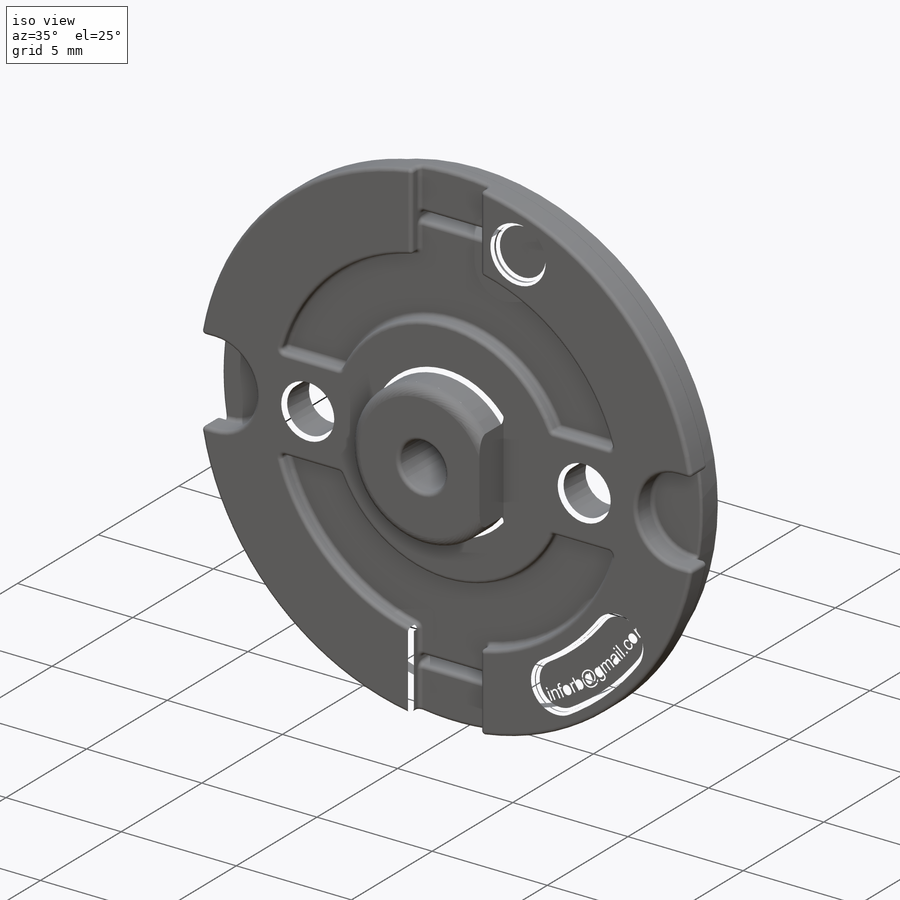
[diagram: iso view]
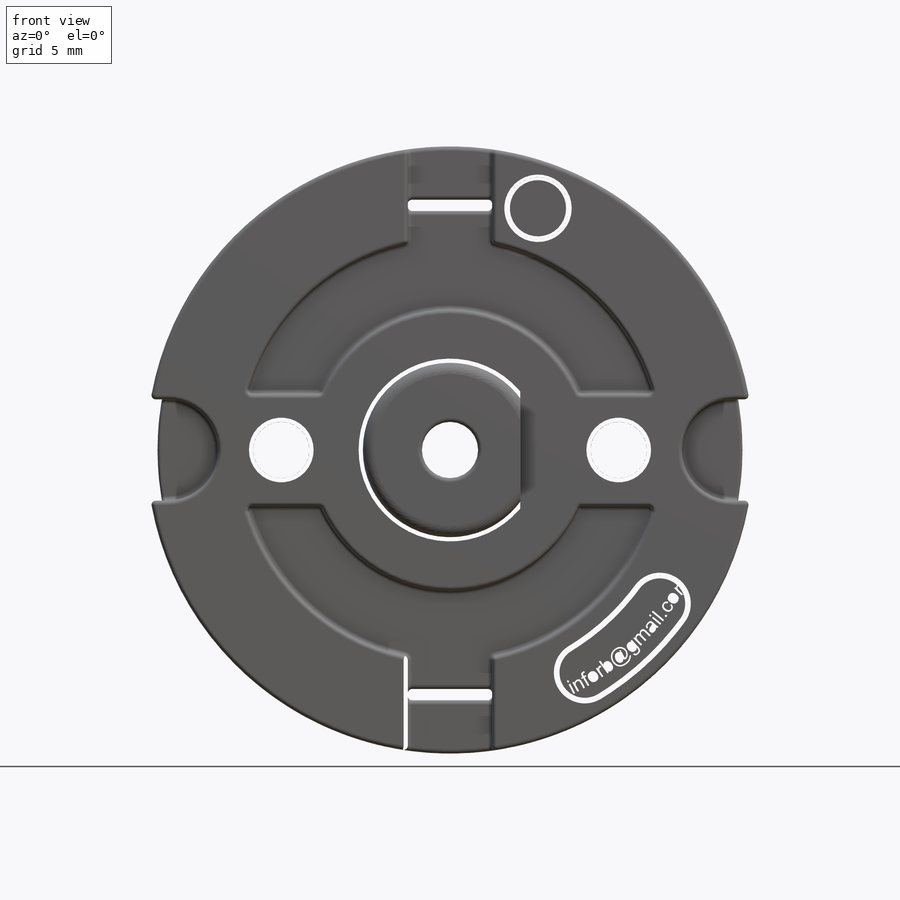
[diagram: front view]
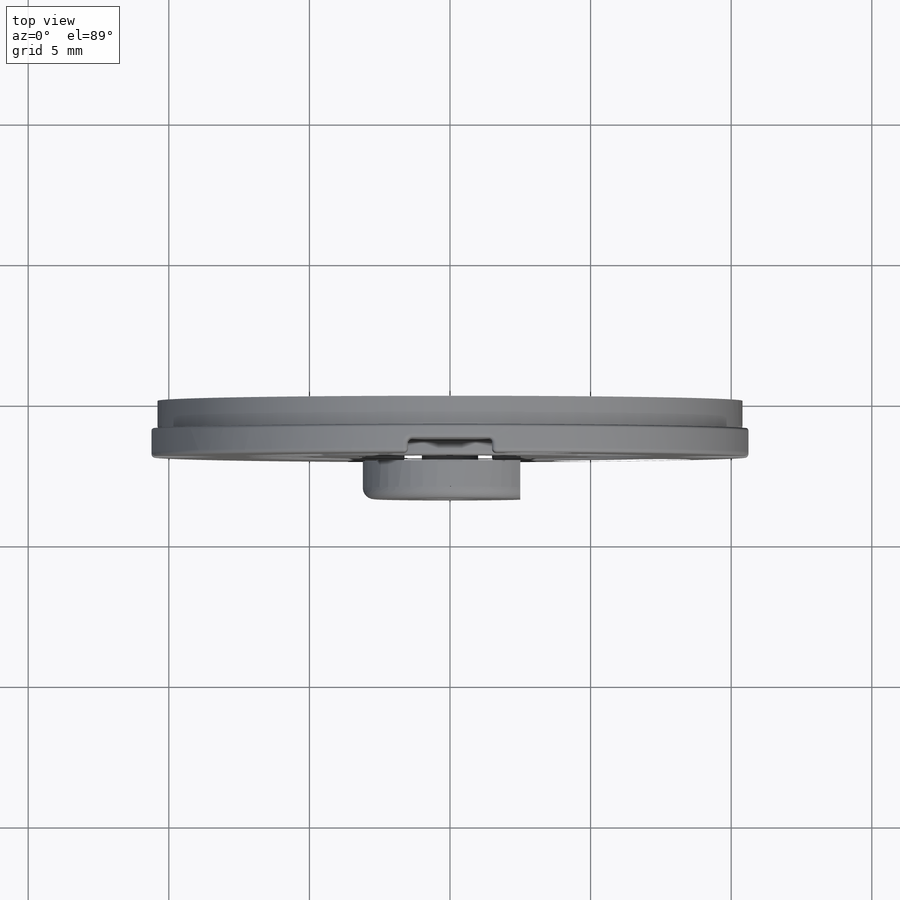
[diagram: top view]
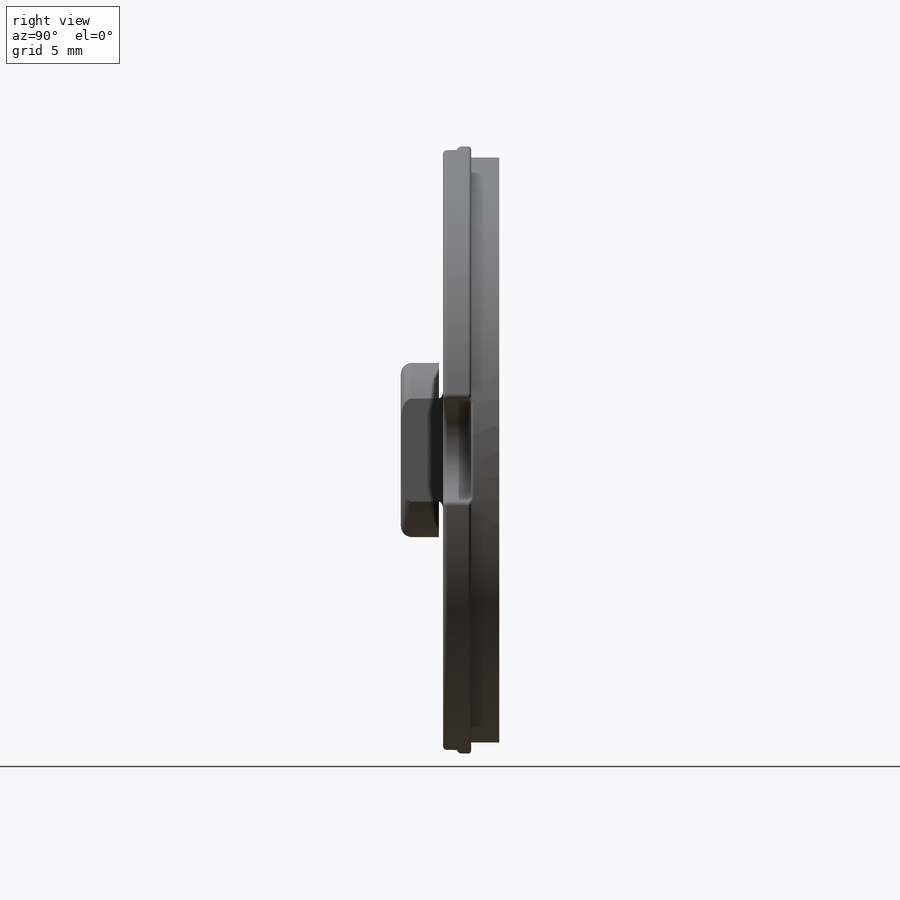
[diagram: right view]
SOLIDWORKS PART (.sldprt)
format: sldprt  version: not decoded by parser v0  size: 1,493,504 bytes
history: native  units: mm
features: sketch x15, fillet x11, cut_extrude x10, plane x4, extrude x4, mirror x4, material x1, cut_revolve x1 (+10 scaffold rows collapsed)
feature tree (60):
  scaffold x10  (default folders/planes/origin — collapsed)
  material  "PP Copolymer"
  plane  "Frontal"
  plane  "Superior"
  plane  "Direito"
  sketch  "Sketch1"  dims[D1=21.59mm]
  extrude  "Extrude1"  Depth=2mm
  sketch  "Sketch2"  dims[D1=6.2mm]
  extrude  "Extrude2"  Depth=1.5mm
  sketch  "Sketch3"  dims[D1=15.0mm D2=10.0mm]
  cut_extrude  "Cut-Extrude1"  Depth=0.5mm
  sketch  "Sketch4"  dims[D1=2.0mm]
  cut_extrude  "Cut-Extrude2"  [1 undecoded]
  sketch  "Sketch5"  dims[D1=3.6mm D2=16.5mm]
  cut_extrude  "Cut-Extrude3"  Depth=1mm
  mirror  "Mirror1"
  sketch  "Sketch6"  dims[D1=~20.80006mm D2=0.5mm]
  cut_revolve  "Cut-Revolve1"  Angle=360deg
  fillet  "Fillet1"  Radius=0.4mm
  sketch  "Sketch16"  dims[D1=5.6mm D2=2.0mm]
  cut_extrude  "Cut-Extrude10"  [1 undecoded]
  fillet  "Fillet2"  Radius=0.15mm
  plane  "Plane1"  Offset=0.5mm
  sketch  "Sketch7"  dims[c1.D1=~4.838445mm c2.D1=30.0deg c3.D1=~2.740941mm c3.D2=4.0mm]
  extrude  "Extrude3"  [1 undecoded]
  sketch  "Sketch11"  dims[D1=2.0mm D2=12.0mm]
  cut_extrude  "Cut-Extrude6"  [1 undecoded]
  mirror  "Mirror2"
  sketch  "Sketch9"  dims[D1=3.0mm]
  cut_extrude  "Cut-Extrude11"  [1 undecoded]
  mirror  "Mirror3"
  sketch  "Sketch12"  dims[c1.D1=~22.531958mm c1.D2=7.5mm c2.D1=2.0mm c2.D3=~16.402829mm c3.D3=10.5deg c3.D4=~15.070991mm c4.D4=10.5deg c4.D2=0.75mm c4.D3=~3.146344mm c5.D3=25.0deg c5.D4=~14.32375mm c6.D4=30.0deg]
  cut_extrude  "Cut-Extrude7"  Depth=0.25mm
  fillet  "Fillet17"  [1 undecoded]
  fillet  "Fillet18"  [1 undecoded]
  sketch  "Sketch13"  dims[c1.D1=2.2mm c1.D2=10.0mm c2.D2=20.0deg]
  cut_extrude  "Cut-Extrude8"  Depth=0.3mm
  fillet  "Fillet6"  Radius=0.15mm
  fillet  "Fillet12"  Radius=0.15mm
  fillet  "Fillet13"  Radius=0.1mm
  fillet  "Fillet14"  Radius=0.1mm
  fillet  "Fillet15"  Radius=0.1mm
  sketch  "Sketch15"  dims[D1=20.5mm D2=~8.084554mm]
  cut_extrude  "Cut-Extrude12"  Depth=0.5mm
  sketch  "Sketch17"  dims[D1=0.4mm D2=17.0mm]
  cut_extrude  "Cut-Extrude13"  [1 undecoded]
  mirror  "Mirror4"
  fillet  "Fillet19"  Radius=0.15mm
  fillet  "Fillet20"  Radius=0.1mm
  sketch  "Sketch18"
  extrude  "Extrude4"  Depth=0.01mm
decode coverage: 32 of 45 modeling features carry decoded parameters
note: ~ marks probable driven/reference dimensions
note: 8 parameter values undecoded
summary: no parameter record found for 8 features
note: suppression state not decoded; provenance and decode notes live in map.json
